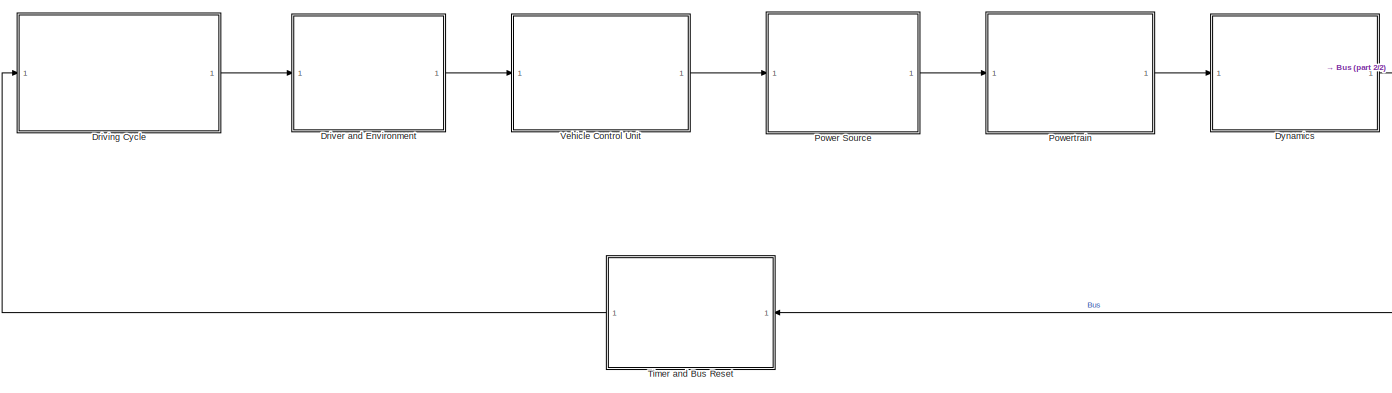
[diagram: root canvas - part 1/2, most of the canvas]
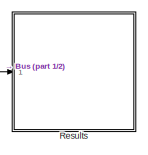
[diagram: root canvas - part 2/2, top right region]
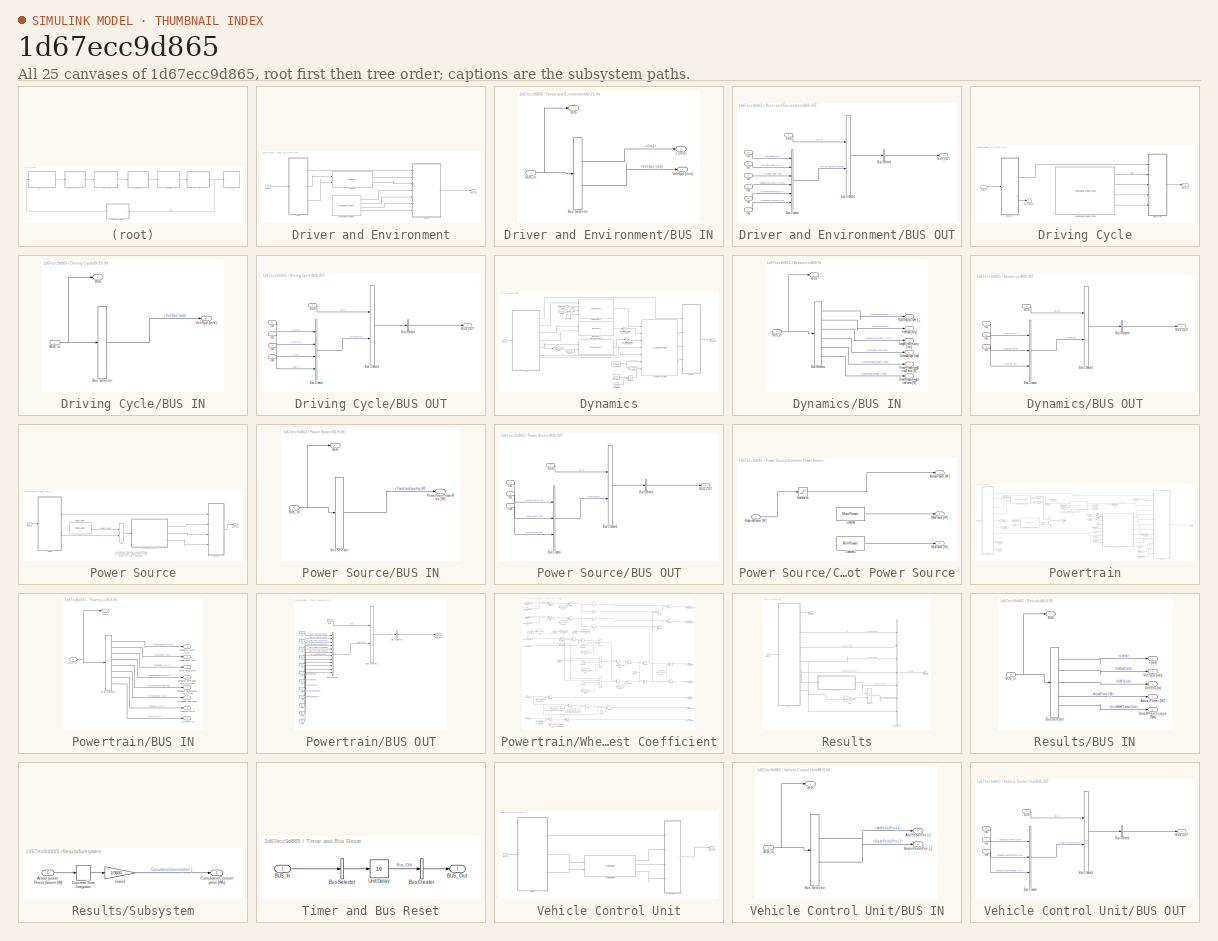
[diagram: thumbnail index - all 25 canvases of the model, root first then tree order]
MODEL slx_1d67ecc9d865
KIND model
CONFIG AbsTol = auto
CONFIG EnableMultiTasking = off
CONFIG FixedStep = 0.01
CONFIG MaxStep = auto
CONFIG MinStep = auto
CONFIG RelTol = 1e-3
CONFIG SampleTimeConstraint = Unconstrained
CONFIG SolverName = FixedStepAuto
CONFIG StartTime = 0.0
CONFIG StopTime = 1477
WORKSPACE source: mxarray member
WORKSPACE C_RR = 0.0103752252297
WORKSPACE SampleTime = 0.01
WORKSPACE StopTime = 1477
WORKSPACE UncertaintyRollerDynamometer = 0.796984855506
WORKSPACE VehMass = 929
WORKSPACE c_w = 0.37
WORKSPACE cycle: timeseries (value not decoded)
WORKSPACE i_gear = 5.6813
WORKSPACE p = 2.5
WORKSPACE power_map_LE = [81.3594367777 81.3594367777 88.9151238368 69.3920543425 121.856227925 33.5913037104 56.5214963128 60.6342218487 61.1595876762 53.4292335319 53.4133899816 35.6771556802 ... (16260 elements, 60x271)]
WORKSPACE power_map_Mot = [0 74.834999341 40.2428359465 95.3690451807 75.6091573236 114.707467852 143.074401876 144.922747771 177.284289075 184.351766643 192.404587732 197.413952644 ... (16260 elements, 60x271)]
WORKSPACE r_dyn = 0.275233869952
BLOCK [SubSystem] Driver and Environment
  OpenFcn = set_param(gcb(),'LinkStatus','none')\nopen_system(gcb(),'force')
  Ports = [1, 1]
  RequestExecContextInheritance = off
BLOCK [SubSystem] Driver and Environment/BUS IN
  OpenFcn = set_param(gcb(),'LinkStatus','none')\nopen_system(gcb(),'mask')\nopen_system(strcat(gcb(),'/Bus Selector'),'Parameter')
  Ports = [1, 3]
  RequestExecContextInheritance = off
BLOCK [Outport] Driver and Environment/BUS IN/BUS
  VectorParamsAs1DForOutWhenUnconnected = off
BLOCK [Inport] Driver and Environment/BUS IN/BUS_In
BLOCK [BusSelector] Driver and Environment/BUS IN/Bus Selector
  OutputSignals = DrivinCycle.v [m/s],Bus_Old.Dynamics.VehSpd [m/s]
  Ports = [1, 2]
BLOCK [Outport] Driver and Environment/BUS IN/VehSpd [m//s]
  Port = 3
  VectorParamsAs1DForOutWhenUnconnected = off
BLOCK [Outport] Driver and Environment/BUS IN/v [m//s]
  Port = 2
  VectorParamsAs1DForOutWhenUnconnected = off
BLOCK [SubSystem] Driver and Environment/BUS OUT
  OpenFcn = set_param(gcb(),'LinkStatus','none')\nopen_system(gcb(),'mask')
  Ports = [7, 1]
  RequestExecContextInheritance = off
BLOCK [Inport] Driver and Environment/BUS OUT/BUS
BLOCK [Outport] Driver and Environment/BUS OUT/BUS_OUT
  VectorParamsAs1DForOutWhenUnconnected = off
BLOCK [BusCreator] Driver and Environment/BUS OUT/Bus Creator
  DisplayOption = bar
  InheritFromInputs = on
  Inputs = 6
  Ports = [6, 1]
BLOCK [BusCreator] Driver and Environment/BUS OUT/Bus Creator1
  DisplayOption = bar
  InheritFromInputs = on
  Inputs = 2
  Ports = [2, 1]
BLOCK [BusSelector] Driver and Environment/BUS OUT/Bus Selector
  OutputAsBus = on
  OutputSignals = Driver and Enironment,BUS.DrivinCycle,BUS.Bus_Old
  Ports = [1, 1]
BLOCK [Inport] Driver and Environment/BUS OUT/In1
  Port = 2
BLOCK [Inport] Driver and Environment/BUS OUT/In2
  Port = 3
BLOCK [Inport] Driver and Environment/BUS OUT/In3
  Port = 4
BLOCK [Inport] Driver and Environment/BUS OUT/In4
  Port = 5
BLOCK [Inport] Driver and Environment/BUS OUT/In5
  Port = 6
BLOCK [Inport] Driver and Environment/BUS OUT/In6
  Port = 7
BLOCK [Inport] Driver and Environment/BUS_In
BLOCK [Outport] Driver and Environment/BUS_Out
  VectorParamsAs1DForOutWhenUnconnected = off
BLOCK [Reference] Driver and Environment/Constant Environment  REF=Constant_Environment/Constant Environment
  Ports = [0, 4]
  SourceBlock = Constant_Environment/Constant Environment
  SourceType = SB
BLOCK [Reference] Driver and Environment/Driver PI  REF=Driver_PI/Driver PI
  Ports = [2, 2]
  SourceBlock = Driver_PI/Driver PI
  SourceType = SB
BLOCK [SubSystem] Driving Cycle
  OpenFcn = set_param(gcb(),'LinkStatus','none')\nopen_system(gcb(),'force')
  Ports = [1, 1]
  RequestExecContextInheritance = off
BLOCK [SubSystem] Driving Cycle/BUS IN
  OpenFcn = set_param(gcb(),'LinkStatus','none')\nopen_system(gcb(),'mask')\nopen_system(strcat(gcb(),'/Bus Selector'),'Parameter')
  Ports = [1, 2]
  RequestExecContextInheritance = off
BLOCK [Outport] Driving Cycle/BUS IN/BUS
  VectorParamsAs1DForOutWhenUnconnected = off
BLOCK [Inport] Driving Cycle/BUS IN/BUS_In
BLOCK [BusSelector] Driving Cycle/BUS IN/Bus Selector
  OutputSignals = Bus_Old.Dynamics.VehSpd [m/s]
  Ports = [1, 1]
BLOCK [Outport] Driving Cycle/BUS IN/VehSpd [m//s]
  Port = 2
  VectorParamsAs1DForOutWhenUnconnected = off
BLOCK [SubSystem] Driving Cycle/BUS OUT
  OpenFcn = set_param(gcb(),'LinkStatus','none')\nopen_system(gcb(),'mask')
  Ports = [5, 1]
  RequestExecContextInheritance = off
BLOCK [Inport] Driving Cycle/BUS OUT/BUS
BLOCK [Outport] Driving Cycle/BUS OUT/BUS_OUT
  VectorParamsAs1DForOutWhenUnconnected = off
BLOCK [BusCreator] Driving Cycle/BUS OUT/Bus Creator
  DisplayOption = bar
  InheritFromInputs = on
  Inputs = 4
  Ports = [4, 1]
BLOCK [BusCreator] Driving Cycle/BUS OUT/Bus Creator1
  DisplayOption = bar
  InheritFromInputs = on
  Inputs = 2
  Ports = [2, 1]
BLOCK [BusSelector] Driving Cycle/BUS OUT/Bus Selector
  OutputAsBus = on
  OutputSignals = DrivinCycle,BUS.Bus_Old
  Ports = [1, 1]
BLOCK [Inport] Driving Cycle/BUS OUT/In1
  Port = 2
BLOCK [Inport] Driving Cycle/BUS OUT/In2
  Port = 3
BLOCK [Inport] Driving Cycle/BUS OUT/In3
  Port = 4
BLOCK [Inport] Driving Cycle/BUS OUT/In4
  Port = 5
BLOCK [Inport] Driving Cycle/BUS_In
BLOCK [Outport] Driving Cycle/BUS_Out
  VectorParamsAs1DForOutWhenUnconnected = off
BLOCK [Reference] Driving Cycle/Longitudinal Driving Cycles  REF=Longitudinal_DrivingCycles/Longitudinal Driving Cycles
  Ports = [0, 4]
  SourceBlock = Longitudinal_DrivingCycles/Longitudinal Driving Cycles
  SourceType = SB
BLOCK [Terminator] Driving Cycle/Terminator
BLOCK [SubSystem] Dynamics
  OpenFcn = set_param(gcb(),'LinkStatus','none')\nopen_system(gcb(),'force')
  Ports = [1, 1]
  RequestExecContextInheritance = off
BLOCK [Reference] Dynamics/Acceleration Calculation  REF=Acceleration_Calculation/Acceleration Calculation
  Ports = [7, 3]
  SourceBlock = Acceleration_Calculation/Acceleration Calculation
  SourceType = SB
BLOCK [Reference] Dynamics/Air Resistance  REF=Air_Resistance/Air Resistance
  Ports = [2, 1]
  SourceBlock = Air_Resistance/Air Resistance
  SourceType = SB
BLOCK [SubSystem] Dynamics/BUS IN
  OpenFcn = set_param(gcb(),'LinkStatus','none')\nopen_system(gcb(),'mask')\nopen_system(strcat(gcb(),'/Bus Selector'),'Parameter')
  Ports = [1, 7]
  RequestExecContextInheritance = off
BLOCK [Outport] Dynamics/BUS IN/BUS
  VectorParamsAs1DForOutWhenUnconnected = off
BLOCK [Inport] Dynamics/BUS IN/BUS_In
BLOCK [BusSelector] Dynamics/BUS IN/Bus Selector
  OutputSignals = Powertrain.RollResistCoeff [-],Bus_Old.Dynamics.VehSpd [m/s],Driver and Enironment.LongWindVelocity [m/s],Driver and Enironment.GroundSlope [rad],Powertrain.FrontWheelsLongDriveForce [N],Powertrain.RearWheelsLongDriveForce [N]
  Ports = [1, 6]
BLOCK [Outport] Dynamics/BUS IN/FrontWheelsLongDriveForce [N]
  Port = 6
  VectorParamsAs1DForOutWhenUnconnected = off
BLOCK [Outport] Dynamics/BUS IN/GroundSlope [rad]
  Port = 5
  VectorParamsAs1DForOutWhenUnconnected = off
BLOCK [Outport] Dynamics/BUS IN/LongWindVelocity [m//s]
  Port = 4
  VectorParamsAs1DForOutWhenUnconnected = off
BLOCK [Outport] Dynamics/BUS IN/RearWheelsLongDriveForce [N]
  Port = 7
  VectorParamsAs1DForOutWhenUnconnected = off
BLOCK [Outport] Dynamics/BUS IN/RollResistCoeff [-]
  Port = 2
  VectorParamsAs1DForOutWhenUnconnected = off
BLOCK [Outport] Dynamics/BUS IN/VehSpd [m//s]
  Port = 3
  VectorParamsAs1DForOutWhenUnconnected = off
BLOCK [SubSystem] Dynamics/BUS OUT
  OpenFcn = set_param(gcb(),'LinkStatus','none')\nopen_system(gcb(),'mask')
  Ports = [4, 1]
  RequestExecContextInheritance = off
BLOCK [Inport] Dynamics/BUS OUT/BUS
BLOCK [Outport] Dynamics/BUS OUT/BUS_OUT
  VectorParamsAs1DForOutWhenUnconnected = off
BLOCK [BusCreator] Dynamics/BUS OUT/Bus Creator
  DisplayOption = bar
  InheritFromInputs = on
  Inputs = 3
  Ports = [3, 1]
BLOCK [BusCreator] Dynamics/BUS OUT/Bus Creator1
  DisplayOption = bar
  InheritFromInputs = on
  Inputs = 2
  Ports = [2, 1]
BLOCK [BusSelector] Dynamics/BUS OUT/Bus Selector
  OutputAsBus = on
  OutputSignals = Dynamics,BUS.Powertrain,BUS.Powersource,BUS.VehicleControlUnit,BUS.Driver and Enironment,BUS.DrivinCycle,BUS.Bus_Old
  Ports = [1, 1]
BLOCK [Inport] Dynamics/BUS OUT/In1
  Port = 2
BLOCK [Inport] Dynamics/BUS OUT/In2
  Port = 3
BLOCK [Inport] Dynamics/BUS OUT/In3
  Port = 4
BLOCK [Inport] Dynamics/BUS_In
BLOCK [Outport] Dynamics/BUS_Out
  VectorParamsAs1DForOutWhenUnconnected = off
BLOCK [Constant] Dynamics/Constant
  Value = 0
BLOCK [Constant] Dynamics/Constant1
  Value = 1.022
BLOCK [Constant] Dynamics/Constant2
  Value = UncertaintyRollerDynamometer
BLOCK [Constant] Dynamics/Constant4
  SampleTime = -1
  Value = VehMass
BLOCK [From] Dynamics/From
  GotoTag = GroundSlope
BLOCK [From] Dynamics/From1
  GotoTag = VehMass
BLOCK [From] Dynamics/From2
  GotoTag = VehMass
BLOCK [Gain] Dynamics/Gain
  Gain = v_HA
BLOCK [Goto] Dynamics/Goto
  GotoTag = GroundSlope
BLOCK [Goto] Dynamics/Goto1
  GotoTag = VehMass
BLOCK [Product] Dynamics/Product
  Ports = [2, 1]
BLOCK [Reference] Dynamics/Roll Resistance  REF=Roll_Resistance/Roll Resistance
  Ports = [4, 1]
  SourceBlock = Roll_Resistance/Roll Resistance
  SourceType = SB
BLOCK [Reference] Dynamics/Slope Resistance  REF=Slope_Resistance/Slope Resistance
  Ports = [2, 1]
  SourceBlock = Slope_Resistance/Slope Resistance
  SourceType = SB
BLOCK [Gain] Dynamics/UncertaintyRollerDynamometer1
BLOCK [Gain] Dynamics/UncertaintyRollerDynamometer2
BLOCK [SubSystem] Power Source
  OpenFcn = set_param(gcb(),'LinkStatus','none')\nopen_system(gcb(),'force')
  Ports = [1, 1]
  RequestExecContextInheritance = off
BLOCK [Sum] Power Source/Add
  IconShape = rectangular
  Ports = [2, 1]
BLOCK [SubSystem] Power Source/BUS IN
  OpenFcn = set_param(gcb(),'LinkStatus','none')\nopen_system(gcb(),'mask')\nopen_system(strcat(gcb(),'/Bus Selector'),'Parameter')
  Ports = [1, 2]
  RequestExecContextInheritance = off
BLOCK [Outport] Power Source/BUS IN/BUS
  VectorParamsAs1DForOutWhenUnconnected = off
BLOCK [Inport] Power Source/BUS IN/BUS_In
BLOCK [BusSelector] Power Source/BUS IN/Bus Selector
  OutputSignals = Bus_Old.Powertrain.PowertrainPowerReq [W]
  Ports = [1, 1]
BLOCK [Outport] Power Source/BUS IN/PowertrainPowerReq [W]
  Port = 2
  VectorParamsAs1DForOutWhenUnconnected = off
BLOCK [SubSystem] Power Source/BUS OUT
  OpenFcn = set_param(gcb(),'LinkStatus','none')\nopen_system(gcb(),'mask')
  Ports = [4, 1]
  RequestExecContextInheritance = off
BLOCK [Inport] Power Source/BUS OUT/BUS
BLOCK [Outport] Power Source/BUS OUT/BUS_OUT
  VectorParamsAs1DForOutWhenUnconnected = off
BLOCK [BusCreator] Power Source/BUS OUT/Bus Creator
  DisplayOption = bar
  InheritFromInputs = on
  Inputs = 3
  Ports = [3, 1]
BLOCK [BusCreator] Power Source/BUS OUT/Bus Creator1
  DisplayOption = bar
  InheritFromInputs = on
  Inputs = 2
  Ports = [2, 1]
BLOCK [BusSelector] Power Source/BUS OUT/Bus Selector
  OutputAsBus = on
  OutputSignals = Powersource,BUS.VehicleControlUnit,BUS.Driver and Enironment,BUS.DrivinCycle,BUS.Bus_Old
  Ports = [1, 1]
BLOCK [Inport] Power Source/BUS OUT/In1
  Port = 2
BLOCK [Inport] Power Source/BUS OUT/In2
  Port = 3
BLOCK [Inport] Power Source/BUS OUT/In3
  Port = 4
BLOCK [Inport] Power Source/BUS_In
BLOCK [Outport] Power Source/BUS_Out
  VectorParamsAs1DForOutWhenUnconnected = off
BLOCK [SubSystem] Power Source/Constant Power Source
  Ports = [1, 3]
  RequestExecContextInheritance = off
BLOCK [Outport] Power Source/Constant Power Source/ActualPower [W]
  VectorParamsAs1DForOutWhenUnconnected = off
BLOCK [Constant] Power Source/Constant Power Source/Constant
  Value = MaxPower
BLOCK [Constant] Power Source/Constant Power Source/Constant1
  Value = MinPower
BLOCK [Outport] Power Source/Constant Power Source/MaxPower [W]
  Port = 2
  VectorParamsAs1DForOutWhenUnconnected = off
BLOCK [Outport] Power Source/Constant Power Source/MinPower [W]
  Port = 3
  VectorParamsAs1DForOutWhenUnconnected = off
BLOCK [Inport] Power Source/Constant Power Source/RequiredPower [W]
BLOCK [Saturate] Power Source/Constant Power Source/Saturation
  LowerLimit = MinPower
  UpperLimit = MaxPower
BLOCK [Reference] Power Source/Simple Auxiliary  REF=Simple_Auxiliary/Simple Auxiliary
  Ports = [0, 1]
  SourceBlock = Simple_Auxiliary/Simple Auxiliary
  SourceType = SB
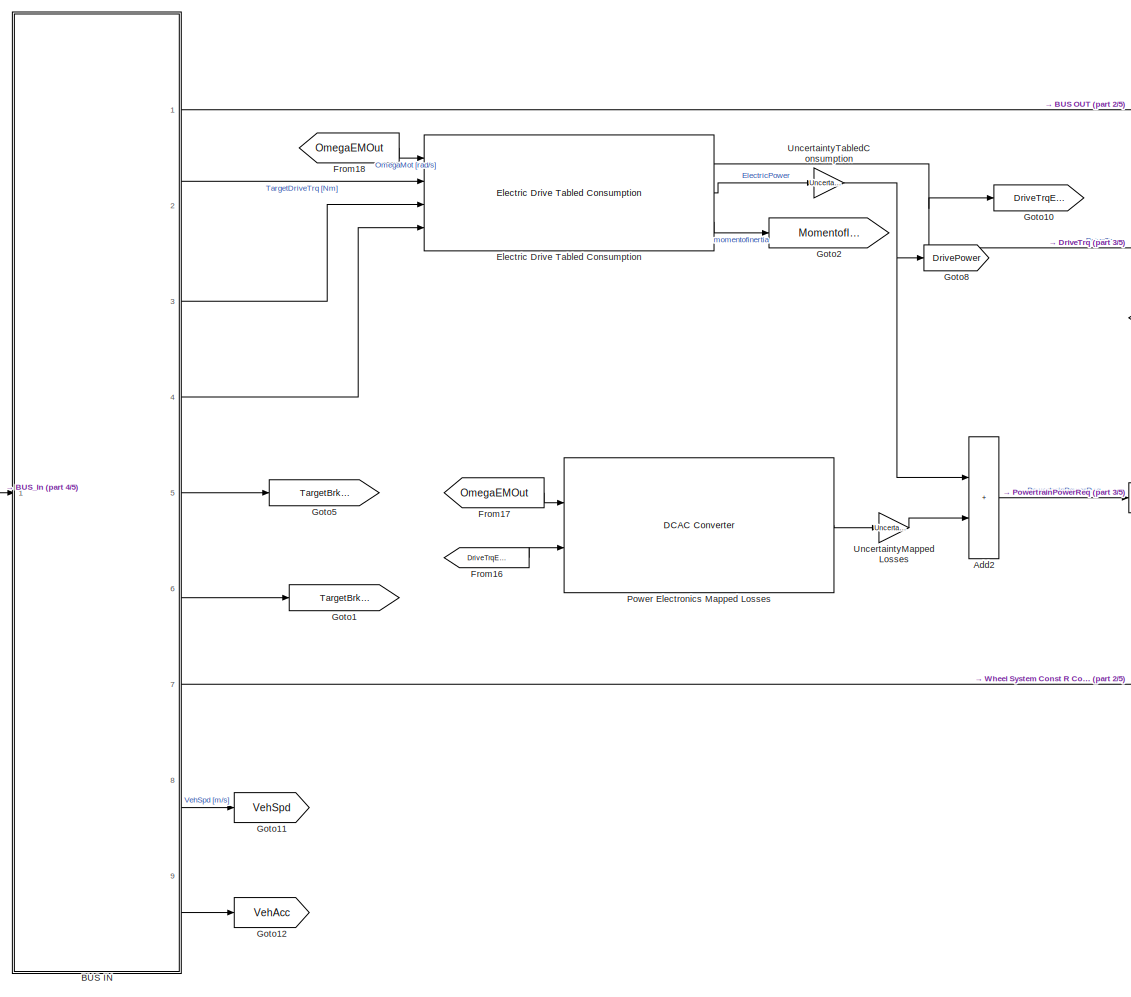
[diagram: Powertrain - part 1/5, left side, full height]
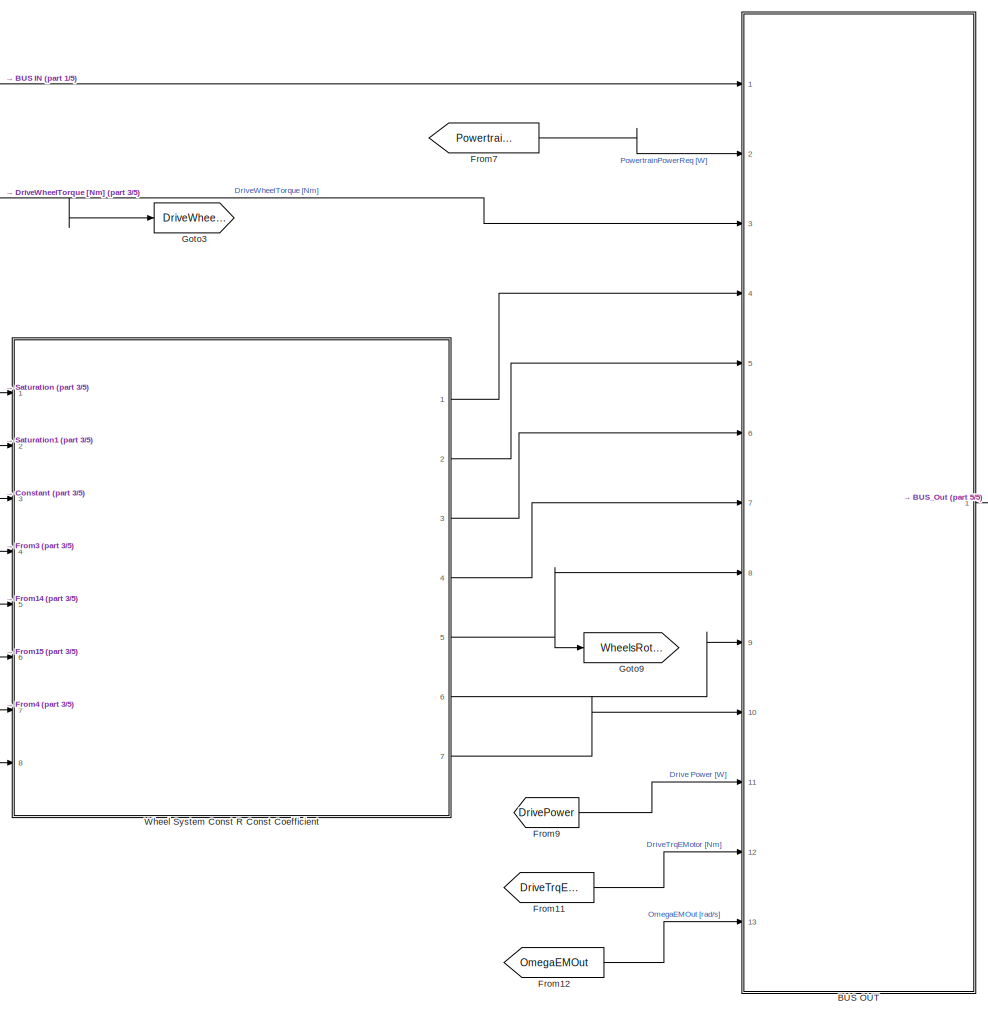
[diagram: Powertrain - part 2/5, right side, full height]
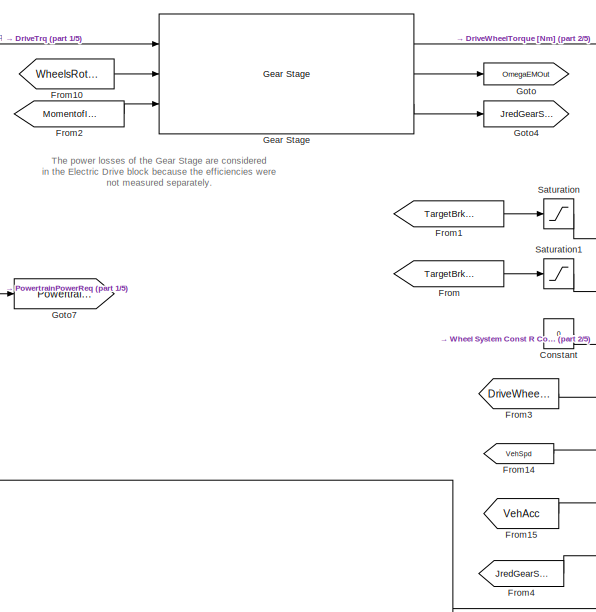
[diagram: Powertrain - part 3/5, central region]
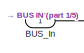
[diagram: Powertrain - part 4/5, middle left region]
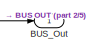
[diagram: Powertrain - part 5/5, middle right region]
BLOCK [SubSystem] Powertrain
  OpenFcn = set_param(gcb(),'LinkStatus','none')\nopen_system(gcb(),'force')
  Ports = [1, 1]
  RequestExecContextInheritance = off
BLOCK [Sum] Powertrain/Add2
  IconShape = rectangular
  Ports = [2, 1]
BLOCK [SubSystem] Powertrain/BUS IN
  OpenFcn = set_param(gcb(),'LinkStatus','none')\nopen_system(gcb(),'mask')\nopen_system(strcat(gcb(),'/Bus Selector'),'Parameter')
  Ports = [1, 9]
  RequestExecContextInheritance = off
BLOCK [Outport] Powertrain/BUS IN/Acc [m//s^2]
  Port = 9
  VectorParamsAs1DForOutWhenUnconnected = off
BLOCK [Outport] Powertrain/BUS IN/BUS
  VectorParamsAs1DForOutWhenUnconnected = off
BLOCK [Inport] Powertrain/BUS IN/BUS_In
BLOCK [BusSelector] Powertrain/BUS IN/Bus Selector
  OutputSignals = VehicleControlUnit.TargetDriveTrq [Nm],Powersource.MaxPower [W],Powersource.MinPower [W],VehicleControlUnit.TargetBrakeTrqFrontAxle [Nm],VehicleControlUnit.TargetBrakeTrqRearAxle [Nm],Driver and Enironment.GroundSlope [rad],Bus_Old.Dynamics.VehSpd [m/s],Bus_Old.Dynamics.Acc [m/s^2]
  Ports = [1, 8]
BLOCK [Outport] Powertrain/BUS IN/GroundSlope [rad]
  Port = 7
  VectorParamsAs1DForOutWhenUnconnected = off
BLOCK [Outport] Powertrain/BUS IN/MaxPower [W]
  Port = 3
  VectorParamsAs1DForOutWhenUnconnected = off
BLOCK [Outport] Powertrain/BUS IN/MinPower [W]
  Port = 4
  VectorParamsAs1DForOutWhenUnconnected = off
BLOCK [Outport] Powertrain/BUS IN/TargetBrakeTrqFrontAxle [Nm]
  Port = 5
  VectorParamsAs1DForOutWhenUnconnected = off
BLOCK [Outport] Powertrain/BUS IN/TargetBrakeTrqRearAxle [Nm]
  Port = 6
  VectorParamsAs1DForOutWhenUnconnected = off
BLOCK [Outport] Powertrain/BUS IN/TargetDriveTrq [Nm]
  Port = 2
  VectorParamsAs1DForOutWhenUnconnected = off
BLOCK [Outport] Powertrain/BUS IN/VehSpd [m//s]
  Port = 8
  VectorParamsAs1DForOutWhenUnconnected = off
BLOCK [SubSystem] Powertrain/BUS OUT
  OpenFcn = set_param(gcb(),'LinkStatus','none')\nopen_system(gcb(),'mask')
  Ports = [13, 1]
  RequestExecContextInheritance = off
BLOCK [Inport] Powertrain/BUS OUT/BUS
BLOCK [Outport] Powertrain/BUS OUT/BUS_OUT
  VectorParamsAs1DForOutWhenUnconnected = off
BLOCK [BusCreator] Powertrain/BUS OUT/Bus Creator
  DisplayOption = bar
  InheritFromInputs = on
  Inputs = 12
  Ports = [12, 1]
BLOCK [BusCreator] Powertrain/BUS OUT/Bus Creator1
  DisplayOption = bar
  InheritFromInputs = on
  Inputs = 2
  Ports = [2, 1]
BLOCK [BusSelector] Powertrain/BUS OUT/Bus Selector
  OutputAsBus = on
  OutputSignals = Powertrain,BUS.Powersource,BUS.VehicleControlUnit,BUS.Driver and Enironment,BUS.DrivinCycle,BUS.Bus_Old
  Ports = [1, 1]
BLOCK [Inport] Powertrain/BUS OUT/In1
  Port = 2
BLOCK [Inport] Powertrain/BUS OUT/In10
  Port = 11
BLOCK [Inport] Powertrain/BUS OUT/In11
  Port = 12
BLOCK [Inport] Powertrain/BUS OUT/In12
  Port = 13
BLOCK [Inport] Powertrain/BUS OUT/In2
  Port = 3
BLOCK [Inport] Powertrain/BUS OUT/In3
  Port = 4
BLOCK [Inport] Powertrain/BUS OUT/In4
  Port = 5
BLOCK [Inport] Powertrain/BUS OUT/In5
  Port = 6
BLOCK [Inport] Powertrain/BUS OUT/In6
  Port = 7
BLOCK [Inport] Powertrain/BUS OUT/In7
  Port = 8
BLOCK [Inport] Powertrain/BUS OUT/In8
  Port = 9
BLOCK [Inport] Powertrain/BUS OUT/In9
  Port = 10
BLOCK [Inport] Powertrain/BUS_In
BLOCK [Outport] Powertrain/BUS_Out
  VectorParamsAs1DForOutWhenUnconnected = off
BLOCK [Constant] Powertrain/Constant
  Value = 0
BLOCK [Reference] Powertrain/Electric Drive Tabled Consumption  REF=Electric_Drive_Tabled_Consumption/Electric Drive Tabled Consumption
  Ports = [4, 3]
  SourceBlock = Electric_Drive_Tabled_Consumption/Electric Drive Tabled Consumption
  SourceType = SB
BLOCK [From] Powertrain/From
  GotoTag = TargetBrkTrqRear
BLOCK [From] Powertrain/From1
  GotoTag = TargetBrkTrqFront
BLOCK [From] Powertrain/From10
  GotoTag = WheelsRotSpeed
BLOCK [From] Powertrain/From11
  GotoTag = DriveTrqEMotor
BLOCK [From] Powertrain/From12
  GotoTag = OmegaEMOut
BLOCK [From] Powertrain/From14
  GotoTag = VehSpd
BLOCK [From] Powertrain/From15
  GotoTag = VehAcc
BLOCK [From] Powertrain/From16
  GotoTag = DriveTrqEMotor
BLOCK [From] Powertrain/From17
  GotoTag = OmegaEMOut
BLOCK [From] Powertrain/From18
  GotoTag = OmegaEMOut
BLOCK [From] Powertrain/From2
  GotoTag = MomentofInertiaED
BLOCK [From] Powertrain/From3
  GotoTag = DriveWheelTrq
BLOCK [From] Powertrain/From4
  GotoTag = JredGearStage
BLOCK [From] Powertrain/From7
  GotoTag = PowertrainPowerReq
BLOCK [From] Powertrain/From9
  GotoTag = DrivePower
BLOCK [Reference] Powertrain/Gear Stage  REF=Gear_Stage/Gear Stage
  Ports = [3, 3]
  SourceBlock = Gear_Stage/Gear Stage
  SourceType = SB
BLOCK [Goto] Powertrain/Goto
  GotoTag = OmegaEMOut
BLOCK [Goto] Powertrain/Goto1
  GotoTag = TargetBrkTrqRear
BLOCK [Goto] Powertrain/Goto10
  GotoTag = DriveTrqEMotor
BLOCK [Goto] Powertrain/Goto11
  GotoTag = VehSpd
BLOCK [Goto] Powertrain/Goto12
  GotoTag = VehAcc
BLOCK [Goto] Powertrain/Goto2
  GotoTag = MomentofInertiaED
BLOCK [Goto] Powertrain/Goto3
  GotoTag = DriveWheelTrq
BLOCK [Goto] Powertrain/Goto4
  GotoTag = JredGearStage
BLOCK [Goto] Powertrain/Goto5
  GotoTag = TargetBrkTrqFront
BLOCK [Goto] Powertrain/Goto7
  GotoTag = PowertrainPowerReq
BLOCK [Goto] Powertrain/Goto8
  GotoTag = DrivePower
BLOCK [Goto] Powertrain/Goto9
  GotoTag = WheelsRotSpeed
BLOCK [Reference] Powertrain/Power Electronics Mapped Losses  REF=DCAC_Converter/DCAC Converter
  Ports = [2, 1]
  SourceBlock = DCAC_Converter/DCAC Converter
  SourceType = SB
BLOCK [Saturate] Powertrain/Saturation
  LowerLimit = -inf
  UpperLimit = 0
BLOCK [Saturate] Powertrain/Saturation1
  LowerLimit = -inf
  UpperLimit = 0
BLOCK [Gain] Powertrain/UncertaintyMappedLosses
  Gain = UncertaintyMappedLosses
BLOCK [Gain] Powertrain/UncertaintyTabledConsumption
  Gain = UncertaintyTabledConsumption
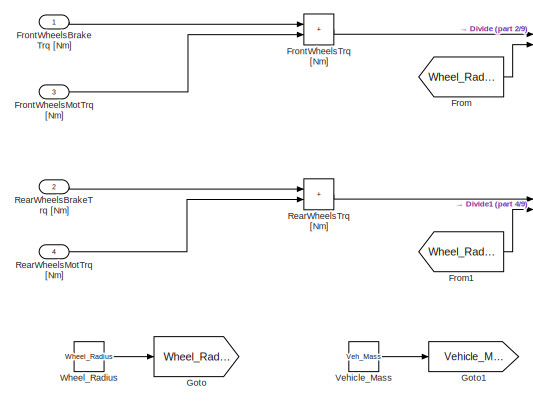
[diagram: Powertrain/Wheel System Const R Const Coefficient - part 1/9, top left region]
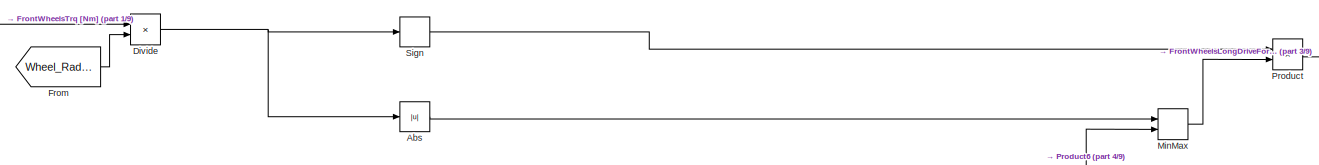
[diagram: Powertrain/Wheel System Const R Const Coefficient - part 2/9, top center region]
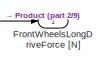
[diagram: Powertrain/Wheel System Const R Const Coefficient - part 3/9, top right region]
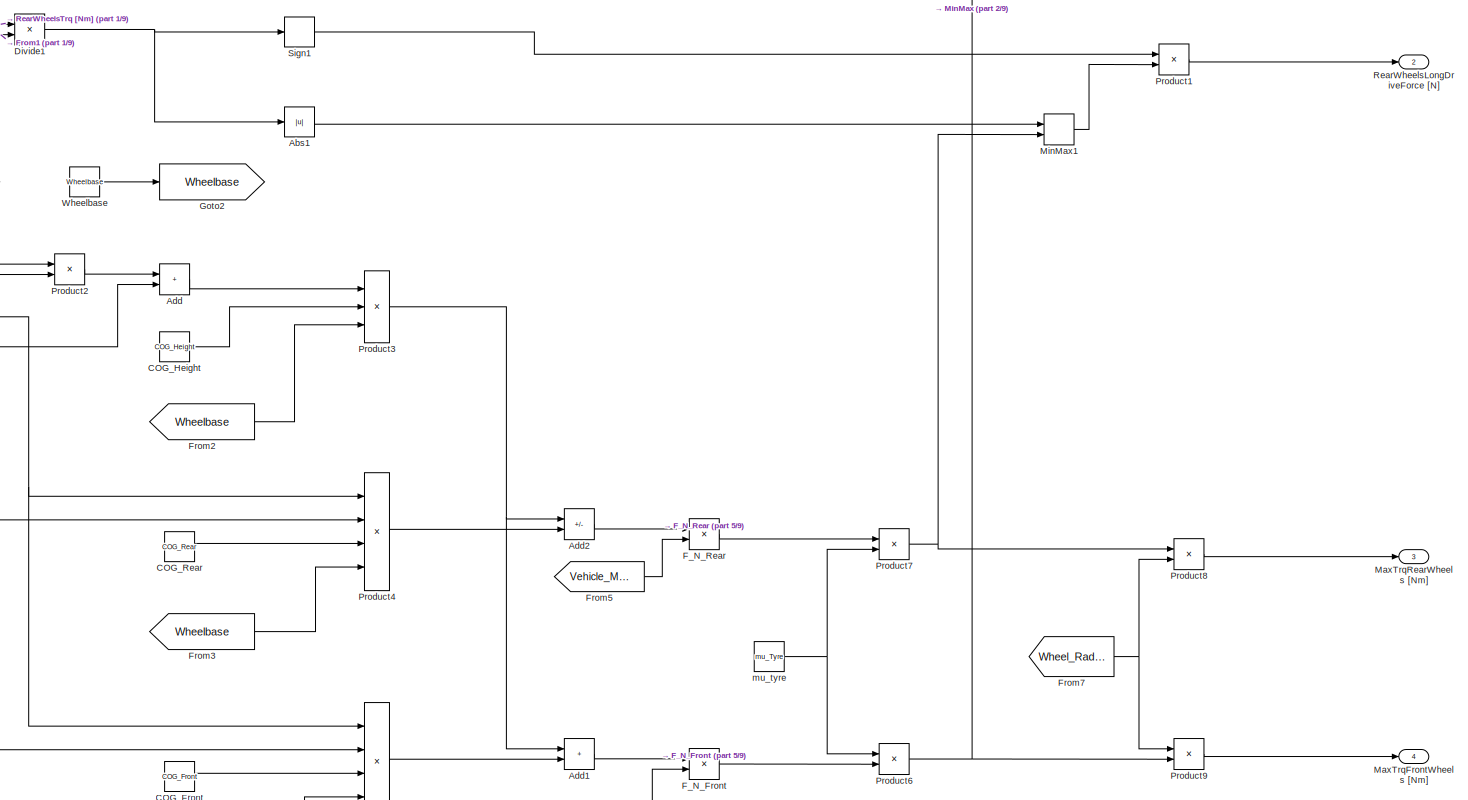
[diagram: Powertrain/Wheel System Const R Const Coefficient - part 4/9, full width, middle band]
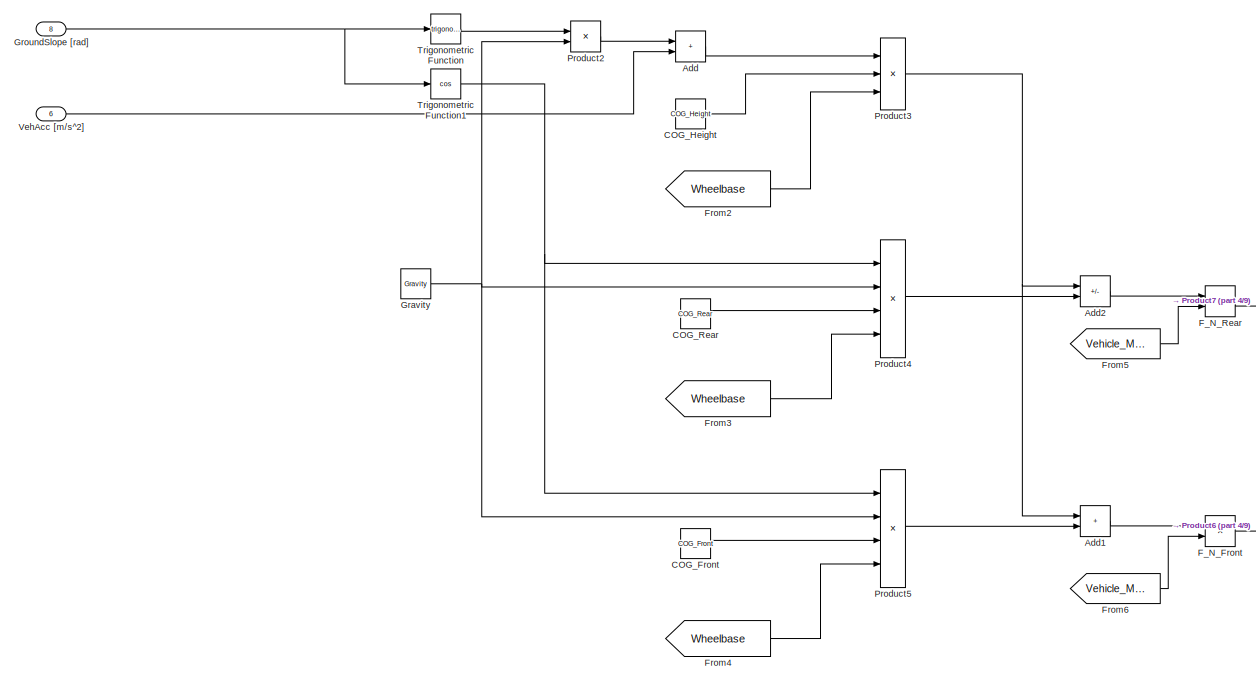
[diagram: Powertrain/Wheel System Const R Const Coefficient - part 5/9, middle left region]
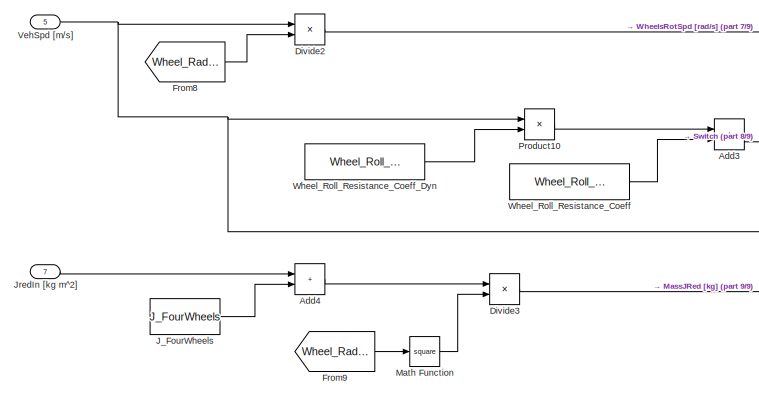
[diagram: Powertrain/Wheel System Const R Const Coefficient - part 6/9, bottom left region]
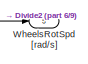
[diagram: Powertrain/Wheel System Const R Const Coefficient - part 7/9, bottom right region]
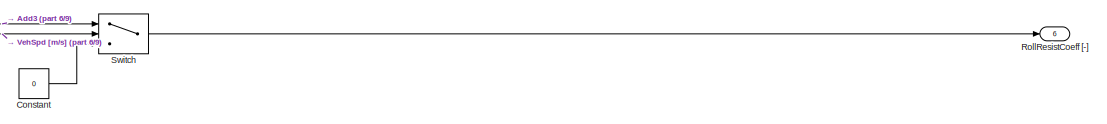
[diagram: Powertrain/Wheel System Const R Const Coefficient - part 8/9, bottom right region]
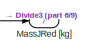
[diagram: Powertrain/Wheel System Const R Const Coefficient - part 9/9, bottom right region]
BLOCK [SubSystem] Powertrain/Wheel System Const R Const Coefficient
  Ports = [8, 7]
  RequestExecContextInheritance = off
BLOCK [Abs] Powertrain/Wheel System Const R Const Coefficient/Abs
  SaturateOnIntegerOverflow = off
BLOCK [Abs] Powertrain/Wheel System Const R Const Coefficient/Abs1
  SaturateOnIntegerOverflow = off
BLOCK [Sum] Powertrain/Wheel System Const R Const Coefficient/Add
  IconShape = rectangular
  Ports = [2, 1]
BLOCK [Sum] Powertrain/Wheel System Const R Const Coefficient/Add1
  IconShape = rectangular
  Ports = [2, 1]
BLOCK [Sum] Powertrain/Wheel System Const R Const Coefficient/Add2
  IconShape = rectangular
  Inputs = -+
  Ports = [2, 1]
BLOCK [Sum] Powertrain/Wheel System Const R Const Coefficient/Add3
  IconShape = rectangular
  Ports = [2, 1]
BLOCK [Sum] Powertrain/Wheel System Const R Const Coefficient/Add4
  IconShape = rectangular
  Ports = [2, 1]
BLOCK [Constant] Powertrain/Wheel System Const R Const Coefficient/COG_Front
  Value = COG_Front
BLOCK [Constant] Powertrain/Wheel System Const R Const Coefficient/COG_Height
  Value = COG_Height
BLOCK [Constant] Powertrain/Wheel System Const R Const Coefficient/COG_Rear
  Value = COG_Rear
BLOCK [Constant] Powertrain/Wheel System Const R Const Coefficient/Constant
  Value = 0
BLOCK [Product] Powertrain/Wheel System Const R Const Coefficient/Divide
  Inputs = */
  Ports = [2, 1]
BLOCK [Product] Powertrain/Wheel System Const R Const Coefficient/Divide1
  Inputs = */
  Ports = [2, 1]
BLOCK [Product] Powertrain/Wheel System Const R Const Coefficient/Divide2
  Inputs = */
  Ports = [2, 1]
BLOCK [Product] Powertrain/Wheel System Const R Const Coefficient/Divide3
  Inputs = */
  Ports = [2, 1]
BLOCK [Product] Powertrain/Wheel System Const R Const Coefficient/F_N_Front
  Ports = [2, 1]
BLOCK [Product] Powertrain/Wheel System Const R Const Coefficient/F_N_Rear
  Ports = [2, 1]
BLOCK [From] Powertrain/Wheel System Const R Const Coefficient/From
  GotoTag = Wheel_Radius
BLOCK [From] Powertrain/Wheel System Const R Const Coefficient/From1
  GotoTag = Wheel_Radius
BLOCK [From] Powertrain/Wheel System Const R Const Coefficient/From2
  GotoTag = Wheelbase
BLOCK [From] Powertrain/Wheel System Const R Const Coefficient/From3
  GotoTag = Wheelbase
BLOCK [From] Powertrain/Wheel System Const R Const Coefficient/From4
  GotoTag = Wheelbase
BLOCK [From] Powertrain/Wheel System Const R Const Coefficient/From5
  GotoTag = Vehicle_Mass
BLOCK [From] Powertrain/Wheel System Const R Const Coefficient/From6
  GotoTag = Vehicle_Mass
BLOCK [From] Powertrain/Wheel System Const R Const Coefficient/From7
  GotoTag = Wheel_Radius
BLOCK [From] Powertrain/Wheel System Const R Const Coefficient/From8
  GotoTag = Wheel_Radius
BLOCK [From] Powertrain/Wheel System Const R Const Coefficient/From9
  GotoTag = Wheel_Radius
BLOCK [Inport] Powertrain/Wheel System Const R Const Coefficient/FrontWheelsBrakeTrq [Nm]
  SampleTime = LocalSampleTime
BLOCK [Outport] Powertrain/Wheel System Const R Const Coefficient/FrontWheelsLongDriveForce [N]
  SampleTime = GlobalSampleTime
  VectorParamsAs1DForOutWhenUnconnected = off
BLOCK [Inport] Powertrain/Wheel System Const R Const Coefficient/FrontWheelsMotTrq [Nm]
  Port = 3
  SampleTime = LocalSampleTime
BLOCK [Sum] Powertrain/Wheel System Const R Const Coefficient/FrontWheelsTrq [Nm]
  IconShape = rectangular
  Ports = [2, 1]
BLOCK [Goto] Powertrain/Wheel System Const R Const Coefficient/Goto
  GotoTag = Wheel_Radius
BLOCK [Goto] Powertrain/Wheel System Const R Const Coefficient/Goto1
  GotoTag = Vehicle_Mass
BLOCK [Goto] Powertrain/Wheel System Const R Const Coefficient/Goto2
  GotoTag = Wheelbase
BLOCK [Constant] Powertrain/Wheel System Const R Const Coefficient/Gravity
  Value = Gravity
BLOCK [Inport] Powertrain/Wheel System Const R Const Coefficient/GroundSlope [rad]
  Port = 8
  SampleTime = LocalSampleTime
BLOCK [Constant] Powertrain/Wheel System Const R Const Coefficient/J_FourWheels
  Value = J_FourWheels
BLOCK [Inport] Powertrain/Wheel System Const R Const Coefficient/JredIn [kg m^2]
  Port = 7
  SampleTime = LocalSampleTime
BLOCK [Outport] Powertrain/Wheel System Const R Const Coefficient/MassJRed [kg]
  Port = 7
  SampleTime = GlobalSampleTime
  VectorParamsAs1DForOutWhenUnconnected = off
BLOCK [Math] Powertrain/Wheel System Const R Const Coefficient/Math Function
  Operator = square
  Ports = [1, 1]
  SignedPower = on
BLOCK [Outport] Powertrain/Wheel System Const R Const Coefficient/MaxTrqFrontWheels [Nm]
  Port = 4
  SampleTime = GlobalSampleTime
  VectorParamsAs1DForOutWhenUnconnected = off
BLOCK [Outport] Powertrain/Wheel System Const R Const Coefficient/MaxTrqRearWheels [Nm]
  Port = 3
  SampleTime = GlobalSampleTime
  VectorParamsAs1DForOutWhenUnconnected = off
BLOCK [MinMax] Powertrain/Wheel System Const R Const Coefficient/MinMax
  Inputs = 2
  Ports = [2, 1]
BLOCK [MinMax] Powertrain/Wheel System Const R Const Coefficient/MinMax1
  Inputs = 2
  Ports = [2, 1]
BLOCK [Product] Powertrain/Wheel System Const R Const Coefficient/Product
  Ports = [2, 1]
BLOCK [Product] Powertrain/Wheel System Const R Const Coefficient/Product1
  Ports = [2, 1]
BLOCK [Product] Powertrain/Wheel System Const R Const Coefficient/Product10
  Ports = [2, 1]
BLOCK [Product] Powertrain/Wheel System Const R Const Coefficient/Product2
  Ports = [2, 1]
BLOCK [Product] Powertrain/Wheel System Const R Const Coefficient/Product3
  Inputs = **/
  Ports = [3, 1]
BLOCK [Product] Powertrain/Wheel System Const R Const Coefficient/Product4
  Inputs = ***/
  Ports = [4, 1]
BLOCK [Product] Powertrain/Wheel System Const R Const Coefficient/Product5
  Inputs = ***/
  Ports = [4, 1]
BLOCK [Product] Powertrain/Wheel System Const R Const Coefficient/Product6
  Ports = [2, 1]
BLOCK [Product] Powertrain/Wheel System Const R Const Coefficient/Product7
  Ports = [2, 1]
BLOCK [Product] Powertrain/Wheel System Const R Const Coefficient/Product8
  Ports = [2, 1]
BLOCK [Product] Powertrain/Wheel System Const R Const Coefficient/Product9
  Ports = [2, 1]
BLOCK [Inport] Powertrain/Wheel System Const R Const Coefficient/RearWheelsBrakeTrq [Nm]
  Port = 2
  SampleTime = LocalSampleTime
BLOCK [Outport] Powertrain/Wheel System Const R Const Coefficient/RearWheelsLongDriveForce [N]
  Port = 2
  SampleTime = GlobalSampleTime
  VectorParamsAs1DForOutWhenUnconnected = off
BLOCK [Inport] Powertrain/Wheel System Const R Const Coefficient/RearWheelsMotTrq [Nm]
  Port = 4
  SampleTime = LocalSampleTime
BLOCK [Sum] Powertrain/Wheel System Const R Const Coefficient/RearWheelsTrq [Nm]
  IconShape = rectangular
  Ports = [2, 1]
BLOCK [Outport] Powertrain/Wheel System Const R Const Coefficient/RollResistCoeff [-]
  Port = 6
  SampleTime = GlobalSampleTime
  VectorParamsAs1DForOutWhenUnconnected = off
BLOCK [Signum] Powertrain/Wheel System Const R Const Coefficient/Sign
BLOCK [Signum] Powertrain/Wheel System Const R Const Coefficient/Sign1
BLOCK [Switch] Powertrain/Wheel System Const R Const Coefficient/Switch
  Criteria = u2 ~= 0
  InputSameDT = off
  SaturateOnIntegerOverflow = off
BLOCK [Trigonometry] Powertrain/Wheel System Const R Const Coefficient/Trigonometric Function
  Ports = [1, 1]
BLOCK [Trigonometry] Powertrain/Wheel System Const R Const Coefficient/Trigonometric Function1
  Operator = cos
  Ports = [1, 1]
BLOCK [Inport] Powertrain/Wheel System Const R Const Coefficient/VehAcc [m//s^2]
  Port = 6
  SampleTime = LocalSampleTime
BLOCK [Inport] Powertrain/Wheel System Const R Const Coefficient/VehSpd [m//s]
  Port = 5
  SampleTime = LocalSampleTime
BLOCK [Constant] Powertrain/Wheel System Const R Const Coefficient/Vehicle_Mass
  Value = Veh_Mass
BLOCK [Constant] Powertrain/Wheel System Const R Const Coefficient/Wheel_Radius
  Value = Wheel_Radius
BLOCK [Constant] Powertrain/Wheel System Const R Const Coefficient/Wheel_Roll_Resistance_Coeff
  Value = Wheel_Roll_Resistance
BLOCK [Constant] Powertrain/Wheel System Const R Const Coefficient/Wheel_Roll_Resistance_Coeff_Dyn
  Value = Wheel_Roll_Resistance_Dyn
BLOCK [Constant] Powertrain/Wheel System Const R Const Coefficient/Wheelbase
  Value = Wheelbase
BLOCK [Outport] Powertrain/Wheel System Const R Const Coefficient/WheelsRotSpd [rad//s]
  Port = 5
  SampleTime = GlobalSampleTime
  VectorParamsAs1DForOutWhenUnconnected = off
BLOCK [Constant] Powertrain/Wheel System Const R Const Coefficient/mu_tyre
  Value = mu_Tyre
BLOCK [SubSystem] Results
  OpenFcn = set_param(gcb(),'LinkStatus','none')\nopen_system(gcb(),'force')
  Ports = [1]
  RequestExecContextInheritance = off
BLOCK [SubSystem] Results/BUS IN
  OpenFcn = set_param(gcb(),'LinkStatus','none')\nopen_system(gcb(),'mask')\nopen_system(strcat(gcb(),'/Bus Selector'),'Parameter')
  Ports = [1, 6]
  RequestExecContextInheritance = off
BLOCK [Outport] Results/BUS IN/ActualPower [W]
  Port = 5
  VectorParamsAs1DForOutWhenUnconnected = off
BLOCK [Outport] Results/BUS IN/BUS
  VectorParamsAs1DForOutWhenUnconnected = off
BLOCK [Inport] Results/BUS IN/BUS_In
BLOCK [BusSelector] Results/BUS IN/Bus Selector
  OutputSignals = DrivinCycle.v [m/s],Dynamics.VehSpd [m/s],Dynamics.VehPos [m],Powersource.ActualPower [W],Powertrain.DriveWheelTorque [Nm]
  Ports = [1, 5]
BLOCK [Outport] Results/BUS IN/DriveWheelTorque [Nm]
  Port = 6
  VectorParamsAs1DForOutWhenUnconnected = off
BLOCK [Outport] Results/BUS IN/VehPos [m]
  Port = 4
  VectorParamsAs1DForOutWhenUnconnected = off
BLOCK [Outport] Results/BUS IN/VehSpd [m//s]
  Port = 3
  VectorParamsAs1DForOutWhenUnconnected = off
BLOCK [Outport] Results/BUS IN/v [m//s]
  Port = 2
  VectorParamsAs1DForOutWhenUnconnected = off
BLOCK [Inport] Results/BUS_In
BLOCK [BusCreator] Results/Bus Creator
  DisplayOption = bar
  InheritFromInputs = on
  Inputs = 7
  Ports = [7, 1]
BLOCK [Gain] Results/Gain
  Gain = 1/10000
BLOCK [Product] Results/Product1
  Inputs = */
  Ports = [2, 1]
BLOCK [SubSystem] Results/Subsystem
  Ports = [1, 1]
  RequestExecContextInheritance = off
BLOCK [Inport] Results/Subsystem/Actual power Power Source [W]
BLOCK [Outport] Results/Subsystem/CumulativeConsumption [Wh]
  Unit = Wh
BLOCK [DiscreteIntegrator] Results/Subsystem/Discrete-Time Integrator
  ICPrevOutput = DiscIntNeverNeededParam
  ICPrevScaledInput = DiscIntNeverNeededParam
  InitialConditionSetting = Auto
  Ports = [1, 1]
  SampleTime = -1
BLOCK [Gain] Results/Subsystem/Gain1
  Gain = 1/3600
BLOCK [Terminator] Results/Terminator
BLOCK [Terminator] Results/Terminator1
BLOCK [SubSystem] Timer and Bus Reset
  OpenFcn = set_param(gcb(),'LinkStatus','none')\nopen_system(gcb(),'mask')
  Ports = [1, 1]
  RequestExecContextInheritance = off
BLOCK [Inport] Timer and Bus Reset/BUS_In
BLOCK [Outport] Timer and Bus Reset/BUS_Out
  VectorParamsAs1DForOutWhenUnconnected = off
BLOCK [BusCreator] Timer and Bus Reset/Bus Creator
  DisplayOption = bar
  InheritFromInputs = on
  Inputs = 1
  Ports = [1, 1]
BLOCK [BusSelector] Timer and Bus Reset/Bus Selector
  OutputAsBus = on
  OutputSignals = Dynamics,Powertrain,Powersource,VehicleControlUnit,Driver and Enironment,DrivinCycle
  Ports = [1, 1]
BLOCK [UnitDelay] Timer and Bus Reset/Unit Delay
  HasFrameUpgradeWarning = on
  SampleTime = -1
BLOCK [SubSystem] Vehicle Control Unit
  OpenFcn = set_param(gcb(),'LinkStatus','none')\nopen_system(gcb(),'force')
  Ports = [1, 1]
  RequestExecContextInheritance = off
BLOCK [SubSystem] Vehicle Control Unit/BUS IN
  OpenFcn = set_param(gcb(),'LinkStatus','none')\nopen_system(gcb(),'mask')\nopen_system(strcat(gcb(),'/Bus Selector'),'Parameter')
  Ports = [1, 3]
  RequestExecContextInheritance = off
BLOCK [Outport] Vehicle Control Unit/BUS IN/AccPedalPos [-]
  Port = 2
  VectorParamsAs1DForOutWhenUnconnected = off
BLOCK [Outport] Vehicle Control Unit/BUS IN/BUS
  VectorParamsAs1DForOutWhenUnconnected = off
BLOCK [Inport] Vehicle Control Unit/BUS IN/BUS_In
BLOCK [Outport] Vehicle Control Unit/BUS IN/BrakePedalPos [-]
  Port = 3
  VectorParamsAs1DForOutWhenUnconnected = off
BLOCK [BusSelector] Vehicle Control Unit/BUS IN/Bus Selector
  OutputSignals = Driver and Enironment.AccPedalPos [-],Driver and Enironment.BrakePedalPos [-]
  Ports = [1, 2]
BLOCK [SubSystem] Vehicle Control Unit/BUS OUT
  OpenFcn = set_param(gcb(),'LinkStatus','none')\nopen_system(gcb(),'mask')
  Ports = [4, 1]
  RequestExecContextInheritance = off
BLOCK [Inport] Vehicle Control Unit/BUS OUT/BUS
BLOCK [Outport] Vehicle Control Unit/BUS OUT/BUS_OUT
  VectorParamsAs1DForOutWhenUnconnected = off
BLOCK [BusCreator] Vehicle Control Unit/BUS OUT/Bus Creator
  DisplayOption = bar
  InheritFromInputs = on
  Inputs = 3
  Ports = [3, 1]
BLOCK [BusCreator] Vehicle Control Unit/BUS OUT/Bus Creator1
  DisplayOption = bar
  InheritFromInputs = on
  Inputs = 2
  Ports = [2, 1]
BLOCK [BusSelector] Vehicle Control Unit/BUS OUT/Bus Selector
  OutputAsBus = on
  OutputSignals = VehicleControlUnit,BUS.Driver and Enironment,BUS.DrivinCycle,BUS.Bus_Old
  Ports = [1, 1]
BLOCK [Inport] Vehicle Control Unit/BUS OUT/In1
  Port = 2
BLOCK [Inport] Vehicle Control Unit/BUS OUT/In2
  Port = 3
BLOCK [Inport] Vehicle Control Unit/BUS OUT/In3
  Port = 4
BLOCK [Inport] Vehicle Control Unit/BUS_In
BLOCK [Outport] Vehicle Control Unit/BUS_Out
  VectorParamsAs1DForOutWhenUnconnected = off
BLOCK [Reference] Vehicle Control Unit/Control Unit Simple  REF=Control_Unit_Simple/Control Unit Simple
  Ports = [2, 3]
  SourceBlock = Control_Unit_Simple/Control Unit Simple
  SourceType = SB
ANNOTATION Power Source: During the experiments the vehicle Smart Fortwo was pluged in to a battery simulator, which provides a power source with constant voltage.
ANNOTATION Powertrain: The power losses of the Gear Stage are considered in the Electric Drive block because the efficiencies were not measured separately.
LINE Driver and Environment/BUS IN:1 -> Driver and Environment/BUS OUT:1
LINE Driver and Environment/BUS IN:2 -> Driver and Environment/Driver PI:1
LINE Driver and Environment/BUS IN:3 -> Driver and Environment/Driver PI:2
LINE Driver and Environment/BUS OUT:1 -> Driver and Environment/BUS_Out:1
LINE Driver and Environment/BUS_In:1 -> Driver and Environment/BUS IN:1
LINE Driver and Environment/Constant Environment:1 -> Driver and Environment/BUS OUT:4
LINE Driver and Environment/Constant Environment:2 -> Driver and Environment/BUS OUT:5
LINE Driver and Environment/Constant Environment:3 -> Driver and Environment/BUS OUT:6
LINE Driver and Environment/Constant Environment:4 -> Driver and Environment/BUS OUT:7
LINE Driver and Environment/Driver PI:1 -> Driver and Environment/BUS OUT:2
LINE Driver and Environment/Driver PI:2 -> Driver and Environment/BUS OUT:3
LINE Driver and Environment:1 -> Vehicle Control Unit:1
LINE Driving Cycle/BUS IN:1 -> Driving Cycle/BUS OUT:1
LINE Driving Cycle/BUS IN:2 -> Driving Cycle/Terminator:1
LINE Driving Cycle/BUS OUT:1 -> Driving Cycle/BUS_Out:1
LINE Driving Cycle/BUS_In:1 -> Driving Cycle/BUS IN:1
LINE Driving Cycle/Longitudinal Driving Cycles:1 -> Driving Cycle/BUS OUT:2
LINE Driving Cycle/Longitudinal Driving Cycles:2 -> Driving Cycle/BUS OUT:3
LINE Driving Cycle/Longitudinal Driving Cycles:3 -> Driving Cycle/BUS OUT:4
LINE Driving Cycle/Longitudinal Driving Cycles:4 -> Driving Cycle/BUS OUT:5
LINE Driving Cycle:1 -> Driver and Environment:1
LINE Dynamics/Acceleration Calculation:1 -> Dynamics/BUS OUT:2
LINE Dynamics/Acceleration Calculation:2 -> Dynamics/BUS OUT:3
LINE Dynamics/Acceleration Calculation:3 -> Dynamics/BUS OUT:4
LINE Dynamics/Air Resistance:1 -> Dynamics/UncertaintyRollerDynamometer1:1
LINE Dynamics/BUS IN:1 -> Dynamics/BUS OUT:1
LINE Dynamics/BUS IN:2 -> Dynamics/Roll Resistance:1
LINE Dynamics/BUS IN:3 -> Dynamics/Air Resistance:1
LINE Dynamics/BUS IN:4 -> Dynamics/Air Resistance:2
NET Dynamics/BUS IN:5 -> Dynamics/Goto:1, Dynamics/Slope Resistance:1
LINE Dynamics/BUS IN:6 -> Dynamics/Acceleration Calculation:4
LINE Dynamics/BUS IN:7 -> Dynamics/Acceleration Calculation:5
LINE Dynamics/BUS OUT:1 -> Dynamics/BUS_Out:1
LINE Dynamics/BUS_In:1 -> Dynamics/BUS IN:1
LINE Dynamics/Constant1:1 -> Dynamics/Product:1
LINE Dynamics/Constant2:1 -> Dynamics/Product:2
NET Dynamics/Constant4:1 -> Dynamics/Acceleration Calculation:6, Dynamics/Goto1:1
LINE Dynamics/Constant:1 -> Dynamics/Roll Resistance:4
LINE Dynamics/From1:1 -> Dynamics/Slope Resistance:2
LINE Dynamics/From2:1 -> Dynamics/Gain:1
LINE Dynamics/From:1 -> Dynamics/Roll Resistance:2
LINE Dynamics/Gain:1 -> Dynamics/Roll Resistance:3
LINE Dynamics/Product:1 -> Dynamics/Acceleration Calculation:7
LINE Dynamics/Roll Resistance:1 -> Dynamics/Acceleration Calculation:1
LINE Dynamics/Slope Resistance:1 -> Dynamics/UncertaintyRollerDynamometer2:1
LINE Dynamics/UncertaintyRollerDynamometer1:1 -> Dynamics/Acceleration Calculation:2
LINE Dynamics/UncertaintyRollerDynamometer2:1 -> Dynamics/Acceleration Calculation:3
NET Dynamics:1 -> Results:1, Timer and Bus Reset:1
LINE Power Source/Add:1 -> Power Source/Constant Power Source:1
LINE Power Source/BUS IN:1 -> Power Source/BUS OUT:1
LINE Power Source/BUS IN:2 -> Power Source/Add:2
LINE Power Source/BUS OUT:1 -> Power Source/BUS_Out:1
LINE Power Source/BUS_In:1 -> Power Source/BUS IN:1
LINE Power Source/Constant Power Source/Constant1:1 -> Power Source/Constant Power Source/MinPower [W]:1
LINE Power Source/Constant Power Source/Constant:1 -> Power Source/Constant Power Source/MaxPower [W]:1
LINE Power Source/Constant Power Source/RequiredPower [W]:1 -> Power Source/Constant Power Source/Saturation:1
LINE Power Source/Constant Power Source/Saturation:1 -> Power Source/Constant Power Source/ActualPower [W]:1
LINE Power Source/Constant Power Source:1 -> Power Source/BUS OUT:2
LINE Power Source/Constant Power Source:2 -> Power Source/BUS OUT:3
LINE Power Source/Constant Power Source:3 -> Power Source/BUS OUT:4
LINE Power Source/Simple Auxiliary:1 -> Power Source/Add:1
LINE Power Source:1 -> Powertrain:1
LINE Powertrain/Add2:1 -> Powertrain/Goto7:1
LINE Powertrain/BUS IN:1 -> Powertrain/BUS OUT:1
LINE Powertrain/BUS IN:2 -> Powertrain/Electric Drive Tabled Consumption:2
LINE Powertrain/BUS IN:3 -> Powertrain/Electric Drive Tabled Consumption:3
LINE Powertrain/BUS IN:4 -> Powertrain/Electric Drive Tabled Consumption:4
LINE Powertrain/BUS IN:5 -> Powertrain/Goto5:1
LINE Powertrain/BUS IN:6 -> Powertrain/Goto1:1
LINE Powertrain/BUS IN:7 -> Powertrain/Wheel System Const R Const Coefficient:8
LINE Powertrain/BUS IN:8 -> Powertrain/Goto11:1
LINE Powertrain/BUS IN:9 -> Powertrain/Goto12:1
LINE Powertrain/BUS OUT:1 -> Powertrain/BUS_Out:1
LINE Powertrain/BUS_In:1 -> Powertrain/BUS IN:1
LINE Powertrain/Constant:1 -> Powertrain/Wheel System Const R Const Coefficient:3
NET Powertrain/Electric Drive Tabled Consumption:1 -> Powertrain/Gear Stage:1, Powertrain/Goto10:1
LINE Powertrain/Electric Drive Tabled Consumption:2 -> Powertrain/UncertaintyTabledConsumption:1
LINE Powertrain/Electric Drive Tabled Consumption:3 -> Powertrain/Goto2:1
LINE Powertrain/From10:1 -> Powertrain/Gear Stage:2
LINE Powertrain/From11:1 -> Powertrain/BUS OUT:12
LINE Powertrain/From12:1 -> Powertrain/BUS OUT:13
LINE Powertrain/From14:1 -> Powertrain/Wheel System Const R Const Coefficient:5
LINE Powertrain/From15:1 -> Powertrain/Wheel System Const R Const Coefficient:6
LINE Powertrain/From16:1 -> Powertrain/Power Electronics Mapped Losses:2
LINE Powertrain/From17:1 -> Powertrain/Power Electronics Mapped Losses:1
LINE Powertrain/From18:1 -> Powertrain/Electric Drive Tabled Consumption:1
LINE Powertrain/From1:1 -> Powertrain/Saturation:1
LINE Powertrain/From2:1 -> Powertrain/Gear Stage:3
LINE Powertrain/From3:1 -> Powertrain/Wheel System Const R Const Coefficient:4
LINE Powertrain/From4:1 -> Powertrain/Wheel System Const R Const Coefficient:7
LINE Powertrain/From7:1 -> Powertrain/BUS OUT:2
LINE Powertrain/From9:1 -> Powertrain/BUS OUT:11
LINE Powertrain/From:1 -> Powertrain/Saturation1:1
NET Powertrain/Gear Stage:1 -> Powertrain/BUS OUT:3, Powertrain/Goto3:1
LINE Powertrain/Gear Stage:2 -> Powertrain/Goto:1
LINE Powertrain/Gear Stage:3 -> Powertrain/Goto4:1
LINE Powertrain/Power Electronics Mapped Losses:1 -> Powertrain/UncertaintyMappedLosses:1
LINE Powertrain/Saturation1:1 -> Powertrain/Wheel System Const R Const Coefficient:2
LINE Powertrain/Saturation:1 -> Powertrain/Wheel System Const R Const Coefficient:1
LINE Powertrain/UncertaintyMappedLosses:1 -> Powertrain/Add2:2
NET Powertrain/UncertaintyTabledConsumption:1 -> Powertrain/Add2:1, Powertrain/Goto8:1
LINE Powertrain/Wheel System Const R Const Coefficient/Abs1:1 -> Powertrain/Wheel System Const R Const Coefficient/MinMax1:1
LINE Powertrain/Wheel System Const R Const Coefficient/Abs:1 -> Powertrain/Wheel System Const R Const Coefficient/MinMax:1
LINE Powertrain/Wheel System Const R Const Coefficient/Add1:1 -> Powertrain/Wheel System Const R Const Coefficient/F_N_Front:1
LINE Powertrain/Wheel System Const R Const Coefficient/Add2:1 -> Powertrain/Wheel System Const R Const Coefficient/F_N_Rear:1
LINE Powertrain/Wheel System Const R Const Coefficient/Add3:1 -> Powertrain/Wheel System Const R Const Coefficient/Switch:1
LINE Powertrain/Wheel System Const R Const Coefficient/Add4:1 -> Powertrain/Wheel System Const R Const Coefficient/Divide3:1
LINE Powertrain/Wheel System Const R Const Coefficient/Add:1 -> Powertrain/Wheel System Const R Const Coefficient/Product3:1
LINE Powertrain/Wheel System Const R Const Coefficient/COG_Front:1 -> Powertrain/Wheel System Const R Const Coefficient/Product5:3
LINE Powertrain/Wheel System Const R Const Coefficient/COG_Height:1 -> Powertrain/Wheel System Const R Const Coefficient/Product3:2
LINE Powertrain/Wheel System Const R Const Coefficient/COG_Rear:1 -> Powertrain/Wheel System Const R Const Coefficient/Product4:3
LINE Powertrain/Wheel System Const R Const Coefficient/Constant:1 -> Powertrain/Wheel System Const R Const Coefficient/Switch:3
NET Powertrain/Wheel System Const R Const Coefficient/Divide1:1 -> Powertrain/Wheel System Const R Const Coefficient/Abs1:1, Powertrain/Wheel System Const R Const Coefficient/Sign1:1
LINE Powertrain/Wheel System Const R Const Coefficient/Divide2:1 -> Powertrain/Wheel System Const R Const Coefficient/WheelsRotSpd [rad//s]:1
LINE Powertrain/Wheel System Const R Const Coefficient/Divide3:1 -> Powertrain/Wheel System Const R Const Coefficient/MassJRed [kg]:1
NET Powertrain/Wheel System Const R Const Coefficient/Divide:1 -> Powertrain/Wheel System Const R Const Coefficient/Abs:1, Powertrain/Wheel System Const R Const Coefficient/Sign:1
LINE Powertrain/Wheel System Const R Const Coefficient/F_N_Front:1 -> Powertrain/Wheel System Const R Const Coefficient/Product6:2
LINE Powertrain/Wheel System Const R Const Coefficient/F_N_Rear:1 -> Powertrain/Wheel System Const R Const Coefficient/Product7:1
LINE Powertrain/Wheel System Const R Const Coefficient/From1:1 -> Powertrain/Wheel System Const R Const Coefficient/Divide1:2
LINE Powertrain/Wheel System Const R Const Coefficient/From2:1 -> Powertrain/Wheel System Const R Const Coefficient/Product3:3
LINE Powertrain/Wheel System Const R Const Coefficient/From3:1 -> Powertrain/Wheel System Const R Const Coefficient/Product4:4
LINE Powertrain/Wheel System Const R Const Coefficient/From4:1 -> Powertrain/Wheel System Const R Const Coefficient/Product5:4
LINE Powertrain/Wheel System Const R Const Coefficient/From5:1 -> Powertrain/Wheel System Const R Const Coefficient/F_N_Rear:2
LINE Powertrain/Wheel System Const R Const Coefficient/From6:1 -> Powertrain/Wheel System Const R Const Coefficient/F_N_Front:2
NET Powertrain/Wheel System Const R Const Coefficient/From7:1 -> Powertrain/Wheel System Const R Const Coefficient/Product8:2, Powertrain/Wheel System Const R Const Coefficient/Product9:1
LINE Powertrain/Wheel System Const R Const Coefficient/From8:1 -> Powertrain/Wheel System Const R Const Coefficient/Divide2:2
LINE Powertrain/Wheel System Const R Const Coefficient/From9:1 -> Powertrain/Wheel System Const R Const Coefficient/Math Function:1
LINE Powertrain/Wheel System Const R Const Coefficient/From:1 -> Powertrain/Wheel System Const R Const Coefficient/Divide:2
LINE Powertrain/Wheel System Const R Const Coefficient/FrontWheelsBrakeTrq [Nm]:1 -> Powertrain/Wheel System Const R Const Coefficient/FrontWheelsTrq [Nm]:1
LINE Powertrain/Wheel System Const R Const Coefficient/FrontWheelsMotTrq [Nm]:1 -> Powertrain/Wheel System Const R Const Coefficient/FrontWheelsTrq [Nm]:2
LINE Powertrain/Wheel System Const R Const Coefficient/FrontWheelsTrq [Nm]:1 -> Powertrain/Wheel System Const R Const Coefficient/Divide:1
NET Powertrain/Wheel System Const R Const Coefficient/Gravity:1 -> Powertrain/Wheel System Const R Const Coefficient/Product2:2, Powertrain/Wheel System Const R Const Coefficient/Product4:2, Powertrain/Wheel System Const R Const Coefficient/Product5:2
NET Powertrain/Wheel System Const R Const Coefficient/GroundSlope [rad]:1 -> Powertrain/Wheel System Const R Const Coefficient/Trigonometric Function1:1, Powertrain/Wheel System Const R Const Coefficient/Trigonometric Function:1
LINE Powertrain/Wheel System Const R Const Coefficient/J_FourWheels:1 -> Powertrain/Wheel System Const R Const Coefficient/Add4:2
LINE Powertrain/Wheel System Const R Const Coefficient/JredIn [kg m^2]:1 -> Powertrain/Wheel System Const R Const Coefficient/Add4:1
LINE Powertrain/Wheel System Const R Const Coefficient/Math Function:1 -> Powertrain/Wheel System Const R Const Coefficient/Divide3:2
LINE Powertrain/Wheel System Const R Const Coefficient/MinMax1:1 -> Powertrain/Wheel System Const R Const Coefficient/Product1:2
LINE Powertrain/Wheel System Const R Const Coefficient/MinMax:1 -> Powertrain/Wheel System Const R Const Coefficient/Product:2
LINE Powertrain/Wheel System Const R Const Coefficient/Product10:1 -> Powertrain/Wheel System Const R Const Coefficient/Add3:1
LINE Powertrain/Wheel System Const R Const Coefficient/Product1:1 -> Powertrain/Wheel System Const R Const Coefficient/RearWheelsLongDriveForce [N]:1
LINE Powertrain/Wheel System Const R Const Coefficient/Product2:1 -> Powertrain/Wheel System Const R Const Coefficient/Add:1
NET Powertrain/Wheel System Const R Const Coefficient/Product3:1 -> Powertrain/Wheel System Const R Const Coefficient/Add1:1, Powertrain/Wheel System Const R Const Coefficient/Add2:1
LINE Powertrain/Wheel System Const R Const Coefficient/Product4:1 -> Powertrain/Wheel System Const R Const Coefficient/Add2:2
LINE Powertrain/Wheel System Const R Const Coefficient/Product5:1 -> Powertrain/Wheel System Const R Const Coefficient/Add1:2
NET Powertrain/Wheel System Const R Const Coefficient/Product6:1 -> Powertrain/Wheel System Const R Const Coefficient/MinMax:2, Powertrain/Wheel System Const R Const Coefficient/Product9:2
NET Powertrain/Wheel System Const R Const Coefficient/Product7:1 -> Powertrain/Wheel System Const R Const Coefficient/MinMax1:2, Powertrain/Wheel System Const R Const Coefficient/Product8:1
LINE Powertrain/Wheel System Const R Const Coefficient/Product8:1 -> Powertrain/Wheel System Const R Const Coefficient/MaxTrqRearWheels [Nm]:1
LINE Powertrain/Wheel System Const R Const Coefficient/Product9:1 -> Powertrain/Wheel System Const R Const Coefficient/MaxTrqFrontWheels [Nm]:1
LINE Powertrain/Wheel System Const R Const Coefficient/Product:1 -> Powertrain/Wheel System Const R Const Coefficient/FrontWheelsLongDriveForce [N]:1
LINE Powertrain/Wheel System Const R Const Coefficient/RearWheelsBrakeTrq [Nm]:1 -> Powertrain/Wheel System Const R Const Coefficient/RearWheelsTrq [Nm]:1
LINE Powertrain/Wheel System Const R Const Coefficient/RearWheelsMotTrq [Nm]:1 -> Powertrain/Wheel System Const R Const Coefficient/RearWheelsTrq [Nm]:2
LINE Powertrain/Wheel System Const R Const Coefficient/RearWheelsTrq [Nm]:1 -> Powertrain/Wheel System Const R Const Coefficient/Divide1:1
LINE Powertrain/Wheel System Const R Const Coefficient/Sign1:1 -> Powertrain/Wheel System Const R Const Coefficient/Product1:1
LINE Powertrain/Wheel System Const R Const Coefficient/Sign:1 -> Powertrain/Wheel System Const R Const Coefficient/Product:1
LINE Powertrain/Wheel System Const R Const Coefficient/Switch:1 -> Powertrain/Wheel System Const R Const Coefficient/RollResistCoeff [-]:1
NET Powertrain/Wheel System Const R Const Coefficient/Trigonometric Function1:1 -> Powertrain/Wheel System Const R Const Coefficient/Product4:1, Powertrain/Wheel System Const R Const Coefficient/Product5:1
LINE Powertrain/Wheel System Const R Const Coefficient/Trigonometric Function:1 -> Powertrain/Wheel System Const R Const Coefficient/Product2:1
LINE Powertrain/Wheel System Const R Const Coefficient/VehAcc [m//s^2]:1 -> Powertrain/Wheel System Const R Const Coefficient/Add:2
NET Powertrain/Wheel System Const R Const Coefficient/VehSpd [m//s]:1 -> Powertrain/Wheel System Const R Const Coefficient/Divide2:1, Powertrain/Wheel System Const R Const Coefficient/Product10:1, Powertrain/Wheel System Const R Const Coefficient/Switch:2
LINE Powertrain/Wheel System Const R Const Coefficient/Vehicle_Mass:1 -> Powertrain/Wheel System Const R Const Coefficient/Goto1:1
LINE Powertrain/Wheel System Const R Const Coefficient/Wheel_Radius:1 -> Powertrain/Wheel System Const R Const Coefficient/Goto:1
LINE Powertrain/Wheel System Const R Const Coefficient/Wheel_Roll_Resistance_Coeff:1 -> Powertrain/Wheel System Const R Const Coefficient/Add3:2
LINE Powertrain/Wheel System Const R Const Coefficient/Wheel_Roll_Resistance_Coeff_Dyn:1 -> Powertrain/Wheel System Const R Const Coefficient/Product10:2
LINE Powertrain/Wheel System Const R Const Coefficient/Wheelbase:1 -> Powertrain/Wheel System Const R Const Coefficient/Goto2:1
NET Powertrain/Wheel System Const R Const Coefficient/mu_tyre:1 -> Powertrain/Wheel System Const R Const Coefficient/Product6:1, Powertrain/Wheel System Const R Const Coefficient/Product7:2
LINE Powertrain/Wheel System Const R Const Coefficient:1 -> Powertrain/BUS OUT:4
LINE Powertrain/Wheel System Const R Const Coefficient:2 -> Powertrain/BUS OUT:5
LINE Powertrain/Wheel System Const R Const Coefficient:3 -> Powertrain/BUS OUT:6
LINE Powertrain/Wheel System Const R Const Coefficient:4 -> Powertrain/BUS OUT:7
NET Powertrain/Wheel System Const R Const Coefficient:5 -> Powertrain/BUS OUT:8, Powertrain/Goto9:1
LINE Powertrain/Wheel System Const R Const Coefficient:6 -> Powertrain/BUS OUT:9
LINE Powertrain/Wheel System Const R Const Coefficient:7 -> Powertrain/BUS OUT:10
LINE Powertrain:1 -> Dynamics:1
LINE Results/BUS IN:1 -> Results/Terminator1:1
LINE Results/BUS IN:2 -> Results/Bus Creator:1
LINE Results/BUS IN:3 -> Results/Bus Creator:2
NET Results/BUS IN:4 -> Results/Bus Creator:3, Results/Gain:1
NET Results/BUS IN:5 -> Results/Bus Creator:4, Results/Subsystem:1
LINE Results/BUS IN:6 -> Results/Bus Creator:7
LINE Results/BUS_In:1 -> Results/BUS IN:1
LINE Results/Bus Creator:1 -> Results/Terminator:1
LINE Results/Gain:1 -> Results/Product1:2
LINE Results/Product1:1 -> Results/Bus Creator:6
LINE Results/Subsystem/Actual power Power Source [W]:1 -> Results/Subsystem/Discrete-Time Integrator:1
LINE Results/Subsystem/Discrete-Time Integrator:1 -> Results/Subsystem/Gain1:1
LINE Results/Subsystem/Gain1:1 -> Results/Subsystem/CumulativeConsumption [Wh]:1
NET Results/Subsystem:1 -> Results/Bus Creator:5, Results/Product1:1
LINE Timer and Bus Reset/BUS_In:1 -> Timer and Bus Reset/Bus Selector:1
LINE Timer and Bus Reset/Bus Creator:1 -> Timer and Bus Reset/BUS_Out:1
LINE Timer and Bus Reset/Bus Selector:1 -> Timer and Bus Reset/Unit Delay:1
LINE Timer and Bus Reset/Unit Delay:1 -> Timer and Bus Reset/Bus Creator:1
LINE Timer and Bus Reset:1 -> Driving Cycle:1
LINE Vehicle Control Unit/BUS IN:1 -> Vehicle Control Unit/BUS OUT:1
LINE Vehicle Control Unit/BUS IN:2 -> Vehicle Control Unit/Control Unit Simple:1
LINE Vehicle Control Unit/BUS IN:3 -> Vehicle Control Unit/Control Unit Simple:2
LINE Vehicle Control Unit/BUS OUT:1 -> Vehicle Control Unit/BUS_Out:1
LINE Vehicle Control Unit/BUS_In:1 -> Vehicle Control Unit/BUS IN:1
LINE Vehicle Control Unit/Control Unit Simple:1 -> Vehicle Control Unit/BUS OUT:2
LINE Vehicle Control Unit/Control Unit Simple:2 -> Vehicle Control Unit/BUS OUT:3
LINE Vehicle Control Unit/Control Unit Simple:3 -> Vehicle Control Unit/BUS OUT:4
LINE Vehicle Control Unit:1 -> Power Source:1
note: NET lines group one-source signal fan-out (src -> all destinations, sorted); 1:1 wires keep LINE
